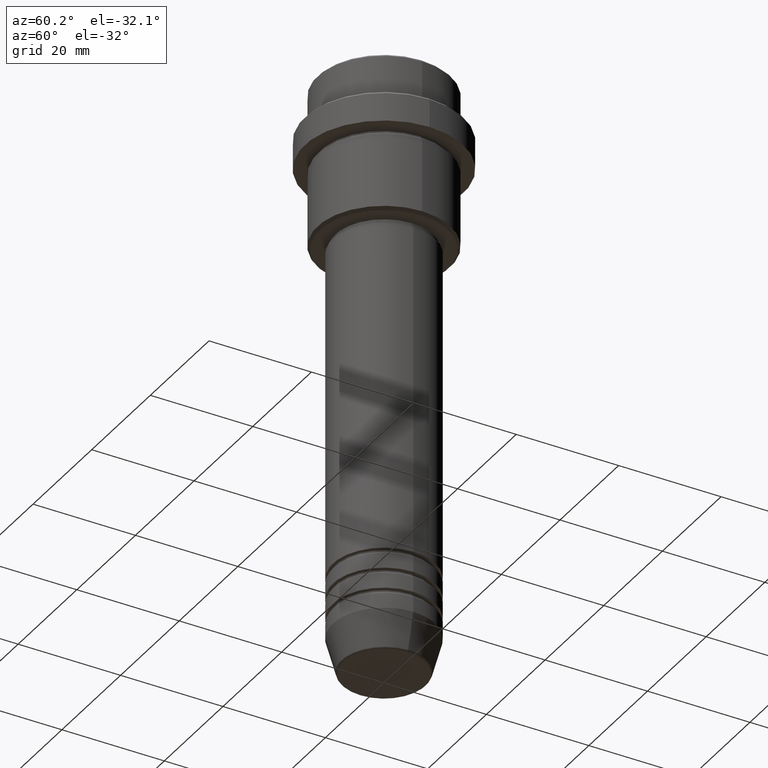
[diagram: clean part render]
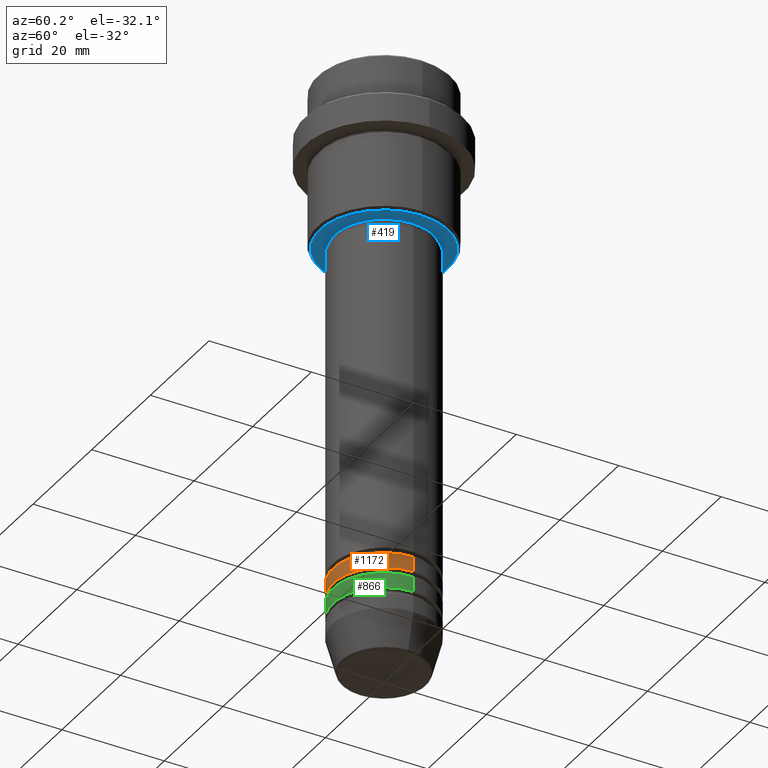
[diagram: same view with three faces highlighted in distinct colors, each labeled with its STEP entity id]
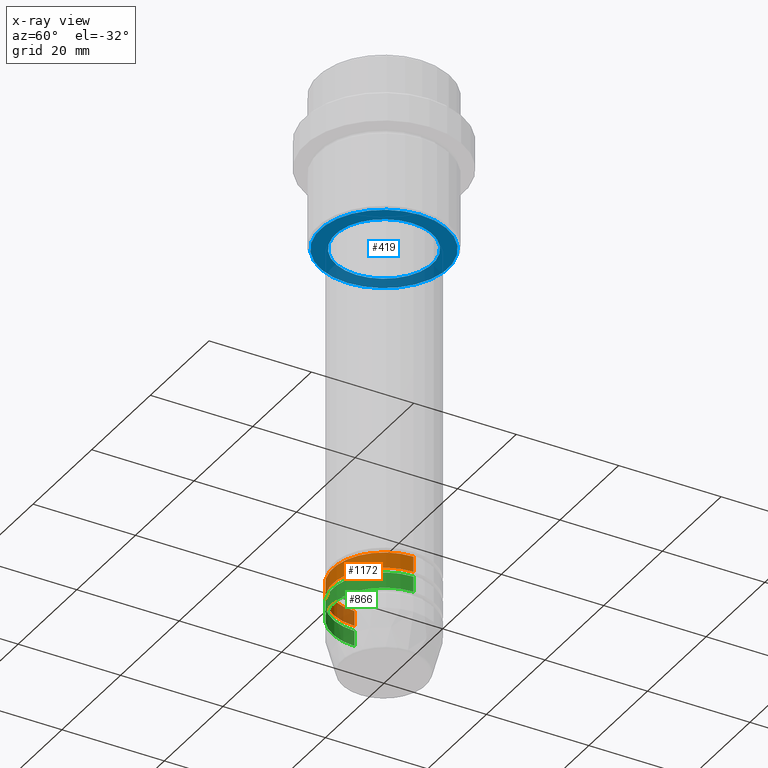
[diagram: x-ray of the same camera — body ghosted, the three highlighted faces saturated]
A machine part, auxiliary view with three faces highlighted in distinct colors.
The next image is the same camera in x-ray (body ghosted, the three faces saturated) — at least one of them is partly hidden behind the body in this view.
Their STEP definitions:

[orange] entity #1172 — the highlighted cylindrical surface (partial cylindrical patch) has radius 10 mm, axis along (-0, -0, 1).
#10 = VECTOR ( 'NONE', #842, 1000.000000000000000 ) ;
#26 = DIRECTION ( 'NONE',  ( 1.000000000000000000, 0.000000000000000000, 0.000000000000000000 ) ) ;
#41 = ORIENTED_EDGE ( 'NONE', *, *, #717, .F. ) ;
#42 = DIRECTION ( 'NONE',  ( 1.000000000000000000, 0.000000000000000000, 0.000000000000000000 ) ) ;
#95 = CIRCLE ( 'NONE', #656, 10.00000000000000000 ) ;
#128 = FACE_OUTER_BOUND ( 'NONE', #1140, .T. ) ;
#129 = CARTESIAN_POINT ( 'NONE',  ( -10.00000000000000000, 1.224646799147353256E-15, 0.000000000000000000 ) ) ;
#158 = DIRECTION ( 'NONE',  ( -0.000000000000000000, -0.000000000000000000, 1.000000000000000000 ) ) ;
#179 = DIRECTION ( 'NONE',  ( 1.000000000000000000, 0.000000000000000000, 0.000000000000000000 ) ) ;
#182 = CARTESIAN_POINT ( 'NONE',  ( -10.00000000000000000, 1.224646799147353256E-15, -97.99999999999988631 ) ) ;
#185 = CARTESIAN_POINT ( 'NONE',  ( 10.00000000000000000, 0.000000000000000000, 0.000000000000000000 ) ) ;
#307 = DIRECTION ( 'NONE',  ( -0.000000000000000000, -0.000000000000000000, 1.000000000000000000 ) ) ;
#364 = CYLINDRICAL_SURFACE ( 'NONE', #658, 10.00000000000000000 ) ;
#370 = CARTESIAN_POINT ( 'NONE',  ( 0.000000000000000000, 0.000000000000000000, -100.9999999999999005 ) ) ;
#392 = ORIENTED_EDGE ( 'NONE', *, *, #759, .T. ) ;
#487 = ORIENTED_EDGE ( 'NONE', *, *, #1054, .T. ) ;
#499 = CIRCLE ( 'NONE', #789, 10.00000000000000000 ) ;
#508 = VERTEX_POINT ( 'NONE', #998 ) ;
#520 = VECTOR ( 'NONE', #158, 1000.000000000000000 ) ;
#575 = DIRECTION ( 'NONE',  ( -0.000000000000000000, -0.000000000000000000, 1.000000000000000000 ) ) ;
#656 = AXIS2_PLACEMENT_3D ( 'NONE', #1377, #307, #179 ) ;
#658 = AXIS2_PLACEMENT_3D ( 'NONE', #896, #575, #26 ) ;
#717 = EDGE_CURVE ( 'NONE', #940, #1261, #1343, .T. ) ;
#756 = ORIENTED_EDGE ( 'NONE', *, *, #776, .F. ) ;
#759 = EDGE_CURVE ( 'NONE', #508, #1059, #1386, .T. ) ;
#776 = EDGE_CURVE ( 'NONE', #1261, #1059, #95, .T. ) ;
#789 = AXIS2_PLACEMENT_3D ( 'NONE', #370, #795, #42 ) ;
#795 = DIRECTION ( 'NONE',  ( -0.000000000000000000, -0.000000000000000000, 1.000000000000000000 ) ) ;
#842 = DIRECTION ( 'NONE',  ( -0.000000000000000000, -0.000000000000000000, 1.000000000000000000 ) ) ;
#896 = CARTESIAN_POINT ( 'NONE',  ( 0.000000000000000000, 0.000000000000000000, 0.000000000000000000 ) ) ;
#940 = VERTEX_POINT ( 'NONE', #1306 ) ;
#998 = CARTESIAN_POINT ( 'NONE',  ( 10.00000000000000000, 0.000000000000000000, -100.9999999999999005 ) ) ;
#1012 = CARTESIAN_POINT ( 'NONE',  ( 10.00000000000000000, 0.000000000000000000, -97.99999999999988631 ) ) ;
#1054 = EDGE_CURVE ( 'NONE', #940, #508, #499, .T. ) ;
#1059 = VERTEX_POINT ( 'NONE', #1012 ) ;
#1140 = EDGE_LOOP ( 'NONE', ( #41, #487, #392, #756 ) ) ;
#1172 = ADVANCED_FACE ( 'NONE', ( #128 ), #364, .T. ) ;
#1261 = VERTEX_POINT ( 'NONE', #182 ) ;
#1306 = CARTESIAN_POINT ( 'NONE',  ( -10.00000000000000000, 1.224646799147353256E-15, -100.9999999999999005 ) ) ;
#1343 = LINE ( 'NONE', #129, #520 ) ;
#1377 = CARTESIAN_POINT ( 'NONE',  ( 0.000000000000000000, 0.000000000000000000, -97.99999999999988631 ) ) ;
#1386 = LINE ( 'NONE', #185, #10 ) ;

[blue] entity #419 — the highlighted planar face has unit normal (0, 0, -1).
#49 = DIRECTION ( 'NONE',  ( -1.000000000000000000, 0.000000000000000000, -0.000000000000000000 ) ) ;
#59 = VERTEX_POINT ( 'NONE', #326 ) ;
#92 = CARTESIAN_POINT ( 'NONE',  ( 0.000000000000000000, 0.000000000000000000, -30.99999999999999645 ) ) ;
#105 = CARTESIAN_POINT ( 'NONE',  ( 12.49999999999999645, 0.000000000000000000, -30.99999999999999645 ) ) ;
#121 = AXIS2_PLACEMENT_3D ( 'NONE', #598, #1347, #912 ) ;
#157 = EDGE_LOOP ( 'NONE', ( #807, #1038 ) ) ;
#303 = DIRECTION ( 'NONE',  ( 0.000000000000000000, 0.000000000000000000, -1.000000000000000000 ) ) ;
#326 = CARTESIAN_POINT ( 'NONE',  ( -12.49999999999999645, 1.561424668912875111E-15, -30.99999999999999645 ) ) ;
#329 = ORIENTED_EDGE ( 'NONE', *, *, #594, .T. ) ;
#369 = VERTEX_POINT ( 'NONE', #1387 ) ;
#419 = ADVANCED_FACE ( 'NONE', ( #1139, #843 ), #601, .T. ) ;
#430 = EDGE_CURVE ( 'NONE', #59, #1368, #563, .T. ) ;
#493 = CARTESIAN_POINT ( 'NONE',  ( 0.000000000000000000, 0.000000000000000000, -30.99999999999999645 ) ) ;
#495 = CIRCLE ( 'NONE', #1286, 12.49999999999999645 ) ;
#541 = CARTESIAN_POINT ( 'NONE',  ( 0.000000000000000000, 0.000000000000000000, -30.99999999999999289 ) ) ;
#563 = CIRCLE ( 'NONE', #1220, 12.49999999999999645 ) ;
#594 = EDGE_CURVE ( 'NONE', #1368, #59, #495, .T. ) ;
#598 = CARTESIAN_POINT ( 'NONE',  ( 0.000000000000000000, 0.000000000000000000, -30.99999999999999289 ) ) ;
#601 = PLANE ( 'NONE',  #949 ) ;
#607 = EDGE_CURVE ( 'NONE', #369, #1201, #1224, .T. ) ;
#624 = CARTESIAN_POINT ( 'NONE',  ( -9.499999999999996447, 1.163414459189985091E-15, -30.99999999999999289 ) ) ;
#648 = DIRECTION ( 'NONE',  ( -1.000000000000000000, 0.000000000000000000, 0.000000000000000000 ) ) ;
#657 = DIRECTION ( 'NONE',  ( -0.000000000000000000, -0.000000000000000000, 1.000000000000000000 ) ) ;
#758 = DIRECTION ( 'NONE',  ( 0.000000000000000000, 0.000000000000000000, -1.000000000000000000 ) ) ;
#807 = ORIENTED_EDGE ( 'NONE', *, *, #607, .T. ) ;
#843 = FACE_BOUND ( 'NONE', #157, .T. ) ;
#912 = DIRECTION ( 'NONE',  ( 1.000000000000000000, 0.000000000000000000, 0.000000000000000000 ) ) ;
#928 = DIRECTION ( 'NONE',  ( -1.000000000000000000, 0.000000000000000000, 0.000000000000000000 ) ) ;
#945 = EDGE_LOOP ( 'NONE', ( #329, #1062 ) ) ;
#949 = AXIS2_PLACEMENT_3D ( 'NONE', #1035, #1279, #49 ) ;
#1035 = CARTESIAN_POINT ( 'NONE',  ( 0.000000000000000000, 13.00000000000000000, -30.99999999999999645 ) ) ;
#1038 = ORIENTED_EDGE ( 'NONE', *, *, #1105, .T. ) ;
#1062 = ORIENTED_EDGE ( 'NONE', *, *, #430, .T. ) ;
#1094 = DIRECTION ( 'NONE',  ( 1.000000000000000000, 0.000000000000000000, 0.000000000000000000 ) ) ;
#1105 = EDGE_CURVE ( 'NONE', #1201, #369, #1113, .T. ) ;
#1113 = CIRCLE ( 'NONE', #121, 9.499999999999996447 ) ;
#1139 = FACE_OUTER_BOUND ( 'NONE', #945, .T. ) ;
#1201 = VERTEX_POINT ( 'NONE', #624 ) ;
#1220 = AXIS2_PLACEMENT_3D ( 'NONE', #493, #303, #928 ) ;
#1224 = CIRCLE ( 'NONE', #1243, 9.499999999999996447 ) ;
#1243 = AXIS2_PLACEMENT_3D ( 'NONE', #541, #657, #1094 ) ;
#1279 = DIRECTION ( 'NONE',  ( 0.000000000000000000, 0.000000000000000000, -1.000000000000000000 ) ) ;
#1286 = AXIS2_PLACEMENT_3D ( 'NONE', #92, #758, #648 ) ;
#1347 = DIRECTION ( 'NONE',  ( -0.000000000000000000, -0.000000000000000000, 1.000000000000000000 ) ) ;
#1368 = VERTEX_POINT ( 'NONE', #105 ) ;
#1387 = CARTESIAN_POINT ( 'NONE',  ( 9.499999999999996447, 0.000000000000000000, -30.99999999999999289 ) ) ;

[green] entity #866 — the highlighted cylindrical surface (partial cylindrical patch) has radius 10 mm, axis along (-0, -0, 1).
#48 = CARTESIAN_POINT ( 'NONE',  ( 10.00000000000000000, 0.000000000000000000, 0.000000000000000000 ) ) ;
#79 = DIRECTION ( 'NONE',  ( 1.000000000000000000, 0.000000000000000000, 0.000000000000000000 ) ) ;
#122 = DIRECTION ( 'NONE',  ( 1.000000000000000000, 0.000000000000000000, 0.000000000000000000 ) ) ;
#187 = CIRCLE ( 'NONE', #997, 10.00000000000000000 ) ;
#221 = DIRECTION ( 'NONE',  ( -0.000000000000000000, -0.000000000000000000, 1.000000000000000000 ) ) ;
#234 = ORIENTED_EDGE ( 'NONE', *, *, #554, .T. ) ;
#243 = AXIS2_PLACEMENT_3D ( 'NONE', #622, #1264, #404 ) ;
#281 = VERTEX_POINT ( 'NONE', #1211 ) ;
#283 = CARTESIAN_POINT ( 'NONE',  ( 10.00000000000000000, 0.000000000000000000, -101.9999999999999005 ) ) ;
#384 = CIRCLE ( 'NONE', #243, 10.00000000000000000 ) ;
#391 = DIRECTION ( 'NONE',  ( -0.000000000000000000, -0.000000000000000000, 1.000000000000000000 ) ) ;
#404 = DIRECTION ( 'NONE',  ( 1.000000000000000000, 0.000000000000000000, 0.000000000000000000 ) ) ;
#510 = LINE ( 'NONE', #1056, #1270 ) ;
#554 = EDGE_CURVE ( 'NONE', #625, #281, #187, .T. ) ;
#622 = CARTESIAN_POINT ( 'NONE',  ( 0.000000000000000000, 0.000000000000000000, -101.9999999999999005 ) ) ;
#625 = VERTEX_POINT ( 'NONE', #915 ) ;
#633 = CYLINDRICAL_SURFACE ( 'NONE', #832, 10.00000000000000000 ) ;
#640 = ORIENTED_EDGE ( 'NONE', *, *, #712, .T. ) ;
#712 = EDGE_CURVE ( 'NONE', #281, #856, #1233, .T. ) ;
#767 = CARTESIAN_POINT ( 'NONE',  ( 0.000000000000000000, 0.000000000000000000, -104.9999999999999005 ) ) ;
#770 = ORIENTED_EDGE ( 'NONE', *, *, #1248, .F. ) ;
#804 = EDGE_CURVE ( 'NONE', #1006, #856, #384, .T. ) ;
#832 = AXIS2_PLACEMENT_3D ( 'NONE', #1165, #1367, #79 ) ;
#839 = ORIENTED_EDGE ( 'NONE', *, *, #804, .F. ) ;
#856 = VERTEX_POINT ( 'NONE', #283 ) ;
#866 = ADVANCED_FACE ( 'NONE', ( #1170 ), #633, .T. ) ;
#878 = EDGE_LOOP ( 'NONE', ( #770, #234, #640, #839 ) ) ;
#879 = CARTESIAN_POINT ( 'NONE',  ( -10.00000000000000000, 1.224646799147353256E-15, -101.9999999999999005 ) ) ;
#915 = CARTESIAN_POINT ( 'NONE',  ( -10.00000000000000000, 1.224646799147353256E-15, -104.9999999999999005 ) ) ;
#997 = AXIS2_PLACEMENT_3D ( 'NONE', #767, #221, #122 ) ;
#1006 = VERTEX_POINT ( 'NONE', #879 ) ;
#1056 = CARTESIAN_POINT ( 'NONE',  ( -10.00000000000000000, 1.224646799147353256E-15, 0.000000000000000000 ) ) ;
#1126 = DIRECTION ( 'NONE',  ( -0.000000000000000000, -0.000000000000000000, 1.000000000000000000 ) ) ;
#1165 = CARTESIAN_POINT ( 'NONE',  ( 0.000000000000000000, 0.000000000000000000, 0.000000000000000000 ) ) ;
#1170 = FACE_OUTER_BOUND ( 'NONE', #878, .T. ) ;
#1211 = CARTESIAN_POINT ( 'NONE',  ( 10.00000000000000000, 0.000000000000000000, -104.9999999999999005 ) ) ;
#1233 = LINE ( 'NONE', #48, #1336 ) ;
#1248 = EDGE_CURVE ( 'NONE', #625, #1006, #510, .T. ) ;
#1264 = DIRECTION ( 'NONE',  ( -0.000000000000000000, -0.000000000000000000, 1.000000000000000000 ) ) ;
#1270 = VECTOR ( 'NONE', #391, 1000.000000000000000 ) ;
#1336 = VECTOR ( 'NONE', #1126, 1000.000000000000000 ) ;
#1367 = DIRECTION ( 'NONE',  ( -0.000000000000000000, -0.000000000000000000, 1.000000000000000000 ) ) ;